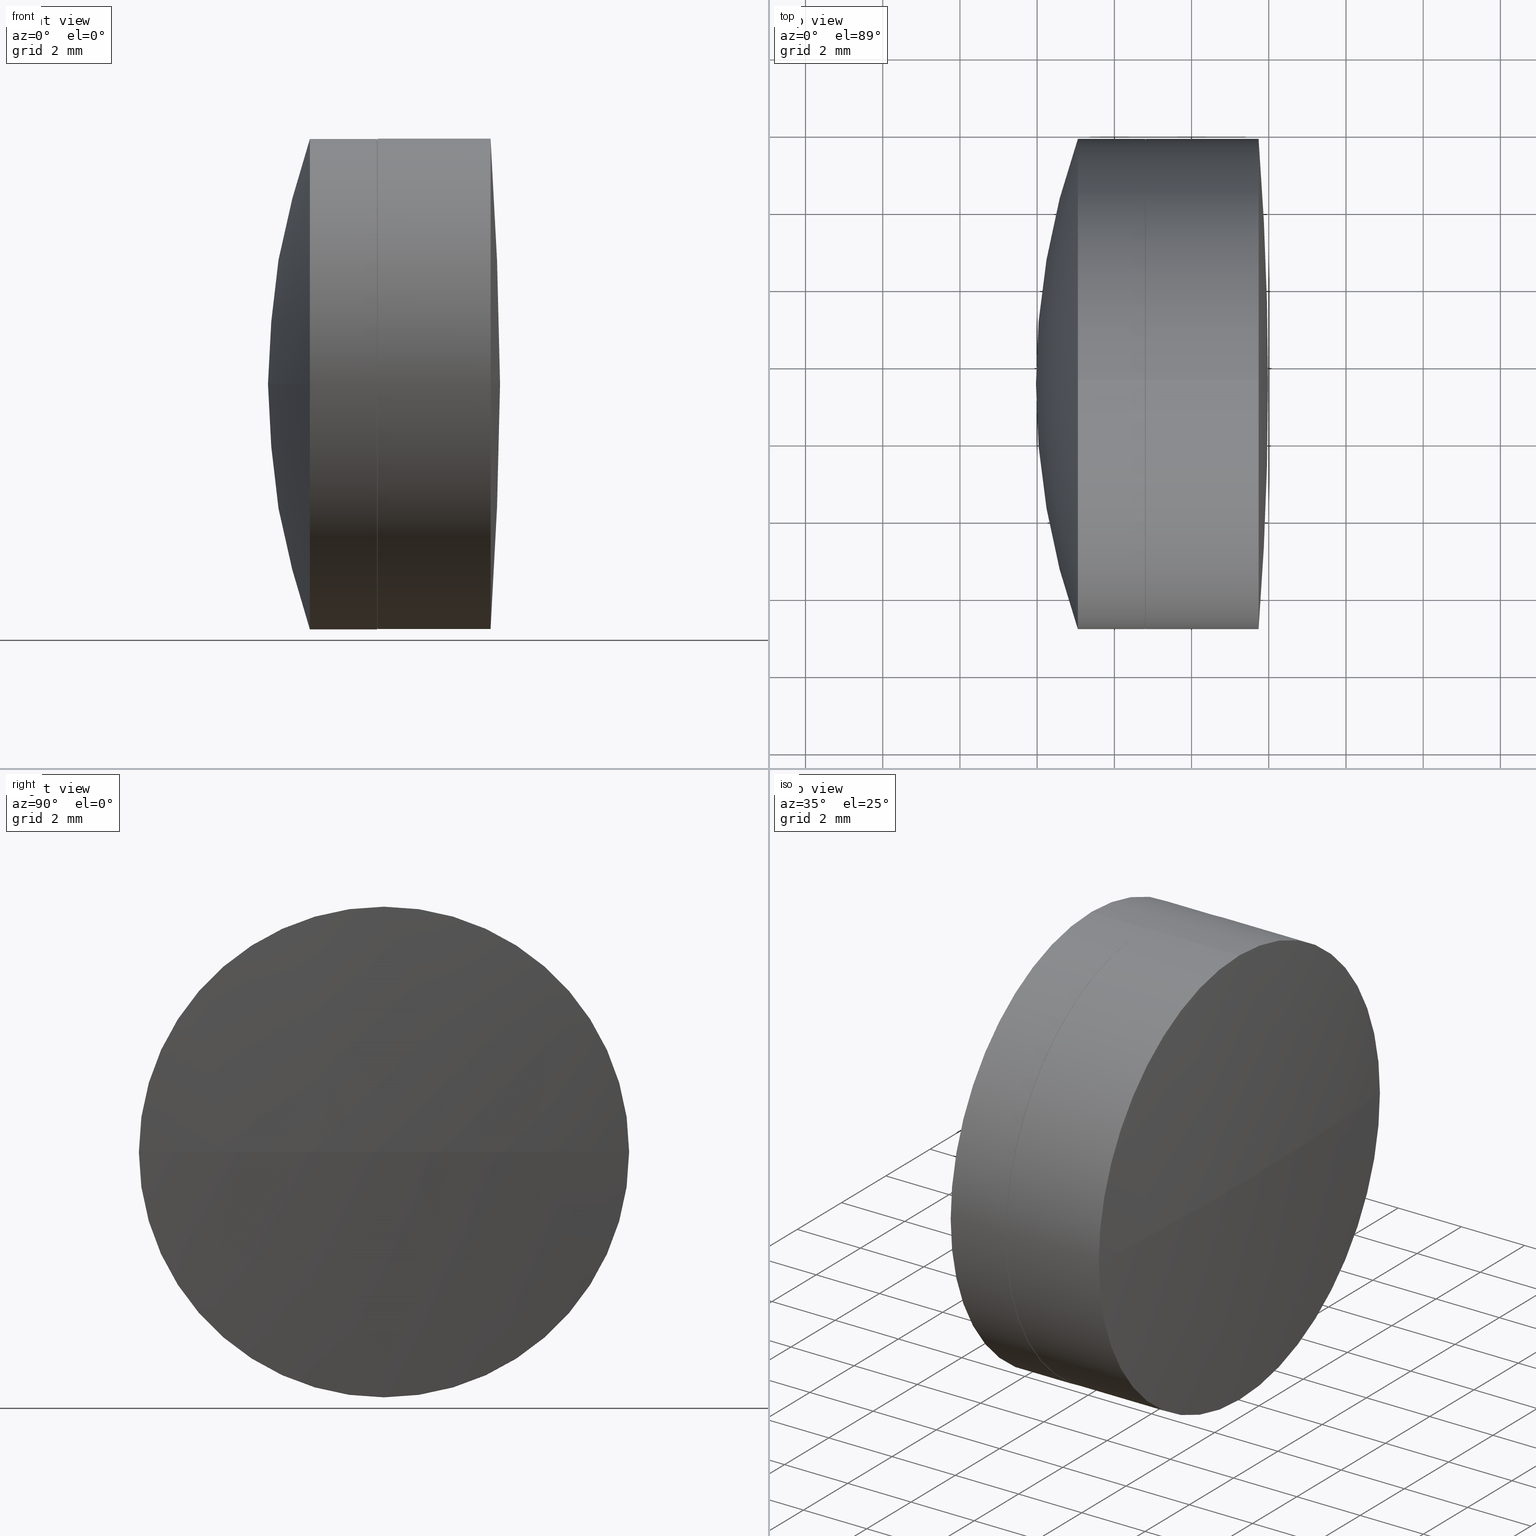
[diagram: canonical four-view strip — front | top / right | iso, engineering-drawing reading convention]
A machine part, canonical four-view strip (front | top / right | iso — engineering-drawing reading convention). The complete STEP part file that produces these views, byte-faithful:
ISO-10303-21;
HEADER;
FILE_DESCRIPTION (( 'STEP AP203' ),
    '1' );
FILE_NAME ('145271.STEP',
    '2024-05-11T01:56:44',
    ( '' ),
    ( '' ),
    'SwSTEP 2.0',
    'SolidWorks 2020',
    '' );
FILE_SCHEMA (( 'CONFIG_CONTROL_DESIGN' ));
ENDSEC;

DATA;
#1 = EDGE_CURVE ( 'NONE', #164, #22, #299, .T. ) ;
#2 = DATE_AND_TIME ( #41, #286 ) ;
#3 = DIRECTION ( 'NONE',  ( 0.000000000000000000, 0.000000000000000000, 1.000000000000000000 ) ) ;
#4 = AXIS2_PLACEMENT_3D ( 'NONE', #238, #42, #39 ) ;
#5 = VERTEX_POINT ( 'NONE', #177 ) ;
#6 = APPLICATION_PROTOCOL_DEFINITION ( 'international standard', 'config_control_design', 1994, #257 ) ;
#7 = CARTESIAN_POINT ( 'NONE',  ( -93.84096436547446274, 15.49148678616774788, -0.009771238364928054587 ) ) ;
#8 = CARTESIAN_POINT ( 'NONE',  ( -76.01897937436920927, 15.49225014134571232, 0.000000000000000000 ) ) ;
#9 = EDGE_LOOP ( 'NONE', ( #350, #143, #53, #262, #276, #243 ) ) ;
#10 = DIRECTION ( 'NONE',  ( 1.000000000000000000, 0.000000000000000000, 0.000000000000000000 ) ) ;
#11 = ADVANCED_FACE ( 'NONE', ( #215 ), #154, .F. ) ;
#12 = FACE_OUTER_BOUND ( 'NONE', #239, .T. ) ;
#13 = DESIGN_CONTEXT ( 'detailed design', #257, 'design' ) ;
#14 = AXIS2_PLACEMENT_3D ( 'NONE', #203, #113, #31 ) ;
#15 = CIRCLE ( 'NONE', #268, 6.349999999999999645 ) ;
#16 = DIRECTION ( 'NONE',  ( -1.000000000000000000, -0.000000000000000000, -0.000000000000000000 ) ) ;
#17 = APPROVAL ( #341, 'δָ��' ) ;
#18 = DIRECTION ( 'NONE',  ( 0.000000000000000000, 0.000000000000000000, 1.000000000000000000 ) ) ;
#19 = DIRECTION ( 'NONE',  ( 0.000000000000000000, 0.000000000000000000, 1.000000000000000000 ) ) ;
#20 = CARTESIAN_POINT ( 'NONE',  ( -80.03096436547446046, 15.49148678616774788, -0.009771238364928054587 ) ) ;
#21 = VECTOR ( 'NONE', #353, 1000.000000000000000 ) ;
#22 = VERTEX_POINT ( 'NONE', #218 ) ;
#23 = DIRECTION ( 'NONE',  ( 0.000000000000000000, 0.000000000000000000, 1.000000000000000000 ) ) ;
#24 = ADVANCED_FACE ( 'NONE', ( #112 ), #187, .T. ) ;
#25 = VECTOR ( 'NONE', #446, 1000.000000000000000 ) ;
#26 = ORIENTED_EDGE ( 'NONE', *, *, #232, .T. ) ;
#27 = COORDINATED_UNIVERSAL_TIME_OFFSET ( 8, 0, .AHEAD. ) ;
#28 = ORIENTED_EDGE ( 'NONE', *, *, #194, .F. ) ;
#29 = AXIS2_PLACEMENT_3D ( 'NONE', #225, #398, #291 ) ;
#30 = APPROVAL_ROLE ( '' ) ;
#31 = DIRECTION ( 'NONE',  ( 0.000000000000000000, 1.000000000000000000, 0.000000000000000000 ) ) ;
#32 = CIRCLE ( 'NONE', #51, 6.349999999999999645 ) ;
#33 = ORIENTED_EDGE ( 'NONE', *, *, #359, .F. ) ;
#34 = DATE_TIME_ROLE ( 'creation_date' ) ;
#35 = CARTESIAN_POINT ( 'NONE',  ( -74.26425793104048978, 9.142250141345662939, -7.776507174585752314E-16 ) ) ;
#36 = EDGE_CURVE ( 'NONE', #402, #164, #293, .T. ) ;
#37 = ORIENTED_EDGE ( 'NONE', *, *, #264, .T. ) ;
#38 = MECHANICAL_CONTEXT ( 'NONE', #231, 'mechanical' ) ;
#39 = DIRECTION ( 'NONE',  ( 0.000000000000000000, 1.000000000000000000, 0.000000000000000000 ) ) ;
#40 = VERTEX_POINT ( 'NONE', #46 ) ;
#41 = CALENDAR_DATE ( 2024, 11, 5 ) ;
#42 = DIRECTION ( 'NONE',  ( -0.000000000000000000, 0.000000000000000000, -1.000000000000000000 ) ) ;
#43 = CIRCLE ( 'NONE', #405, 6.349999999999999645 ) ;
#44 = CIRCLE ( 'NONE', #436, 82.31999999999999318 ) ;
#45 = AXIS2_PLACEMENT_3D ( 'NONE', #151, #84, #326 ) ;
#46 = CARTESIAN_POINT ( 'NONE',  ( -80.03096436547446046, 15.49148678616774966, -0.009771238364928054587 ) ) ;
#47 = DIRECTION ( 'NONE',  ( -0.000000000000000000, 0.000000000000000000, -1.000000000000000000 ) ) ;
#48 = CARTESIAN_POINT ( 'NONE',  ( -77.20144514165072280, 15.49148678616774788, -0.009771238364928054587 ) ) ;
#49 = SPHERICAL_SURFACE ( 'NONE', #396, 19.12000000000000455 ) ;
#50 = AXIS2_PLACEMENT_3D ( 'NONE', #8, #235, #91 ) ;
#51 = AXIS2_PLACEMENT_3D ( 'NONE', #328, #397, #18 ) ;
#52 = DIRECTION ( 'NONE',  ( -1.000000000000000000, -0.000000000000000000, -0.000000000000000000 ) ) ;
#53 = ORIENTED_EDGE ( 'NONE', *, *, #160, .F. ) ;
#54 = FACE_OUTER_BOUND ( 'NONE', #303, .T. ) ;
#55 = EDGE_LOOP ( 'NONE', ( #422, #327, #213, #99 ) ) ;
#56 = EDGE_LOOP ( 'NONE', ( #331, #172, #138, #126 ) ) ;
#57 = ADVANCED_BREP_SHAPE_REPRESENTATION ( '145271', ( #212, #365, #182 ), #431 ) ;
#58 = PRODUCT_DEFINITION_FORMATION_WITH_SPECIFIED_SOURCE ( '�κ�', '', #368, .NOT_KNOWN. ) ;
#59 = EDGE_CURVE ( 'NONE', #5, #263, #165, .T. ) ;
#60 = VERTEX_POINT ( 'NONE', #114 ) ;
#61 = CC_DESIGN_PERSON_AND_ORGANIZATION_ASSIGNMENT ( #412, #170, ( #58 ) ) ;
#62 = CARTESIAN_POINT ( 'NONE',  ( -74.26425793104048978, 21.84225014134576170, 0.000000000000000000 ) ) ;
#63 = AXIS2_PLACEMENT_3D ( 'NONE', #310, #241, #314 ) ;
#64 = CARTESIAN_POINT ( 'NONE',  ( -78.94570583853140988, 15.49148678616774788, -0.009771238364928054587 ) ) ;
#65 = COORDINATED_UNIVERSAL_TIME_OFFSET ( 8, 0, .AHEAD. ) ;
#66 = FACE_OUTER_BOUND ( 'NONE', #184, .T. ) ;
#67 = VERTEX_POINT ( 'NONE', #152 ) ;
#68 = CLOSED_SHELL ( 'NONE', ( #306, #391, #153, #424, #230, #24 ) ) ;
#69 = EDGE_CURVE ( 'NONE', #380, #439, #89, .T. ) ;
#70 = CARTESIAN_POINT ( 'NONE',  ( 0.000000000000000000, 0.000000000000000000, 0.000000000000000000 ) ) ;
#71 = DIRECTION ( 'NONE',  ( -1.000000000000000000, -0.000000000000000000, -0.000000000000000000 ) ) ;
#72 = CIRCLE ( 'NONE', #191, 6.349999999999999645 ) ;
#73 = VERTEX_POINT ( 'NONE', #192 ) ;
#74 = APPROVAL_STATUS ( 'not_yet_approved' ) ;
#75 = CYLINDRICAL_SURFACE ( 'NONE', #336, 6.349999999999999645 ) ;
#76 = VERTEX_POINT ( 'NONE', #333 ) ;
#77 = DIRECTION ( 'NONE',  ( -0.000000000000000000, 0.000000000000000000, 1.000000000000000000 ) ) ;
#78 = DIRECTION ( 'NONE',  ( -1.000000000000000000, -0.000000000000000000, -0.000000000000000000 ) ) ;
#79 = EDGE_CURVE ( 'NONE', #193, #124, #360, .T. ) ;
#80 = CARTESIAN_POINT ( 'NONE',  ( -77.18875715362992196, 21.84225014134572262, 0.000000000000000000 ) ) ;
#81 = CC_DESIGN_APPROVAL ( #399, ( #217 ) ) ;
#82 = DIRECTION ( 'NONE',  ( 0.000000000000000000, 1.000000000000000000, 0.000000000000000000 ) ) ;
#83 = DIRECTION ( 'NONE',  ( -0.000000000000000000, 0.000000000000000000, 1.000000000000000000 ) ) ;
#84 = DIRECTION ( 'NONE',  ( -0.000000000000000000, 0.000000000000000000, -1.000000000000000000 ) ) ;
#85 = DIRECTION ( 'NONE',  ( 0.000000000000000000, 0.000000000000000000, 1.000000000000000000 ) ) ;
#86 = EDGE_CURVE ( 'NONE', #246, #380, #43, .T. ) ;
#87 = AXIS2_PLACEMENT_3D ( 'NONE', #369, #229, #23 ) ;
#88 = CARTESIAN_POINT ( 'NONE',  ( -77.20144514165072280, 15.49148678616774788, 6.340228761635072097 ) ) ;
#89 = LINE ( 'NONE', #251, #343 ) ;
#90 = CARTESIAN_POINT ( 'NONE',  ( -78.94570583853140988, 15.49148678616774788, 6.340228761635072097 ) ) ;
#91 = DIRECTION ( 'NONE',  ( 0.000000000000000000, 0.000000000000000000, 1.000000000000000000 ) ) ;
#92 = ORIENTED_EDGE ( 'NONE', *, *, #179, .F. ) ;
#93 = CIRCLE ( 'NONE', #285, 6.349999999999999645 ) ;
#94 = PRODUCT_DEFINITION ( 'δ֪', '', #58, #13 ) ;
#95 = VERTEX_POINT ( 'NONE', #434 ) ;
#96 = LOCAL_TIME ( 9, 56, 44.00000000000000000, #200 ) ;
#97 = DIRECTION ( 'NONE',  ( 0.000000000000000000, 0.000000000000000000, 1.000000000000000000 ) ) ;
#98 = APPROVAL_DATE_TIME ( #167, #17 ) ;
#99 = ORIENTED_EDGE ( 'NONE', *, *, #359, .T. ) ;
#100 = DIRECTION ( 'NONE',  ( 0.000000000000000000, 1.000000000000000000, 1.224646799147352961E-16 ) ) ;
#101 = SECURITY_CLASSIFICATION_LEVEL ( 'unclassified' ) ;
#102 = EDGE_CURVE ( 'NONE', #5, #60, #266, .T. ) ;
#103 = CARTESIAN_POINT ( 'NONE',  ( -74.26425793104050399, 15.49225014134571232, 0.000000000000000000 ) ) ;
#104 = ORIENTED_EDGE ( 'NONE', *, *, #179, .T. ) ;
#105 =( NAMED_UNIT ( * ) PLANE_ANGLE_UNIT ( ) SI_UNIT ( $, .RADIAN. ) );
#106 = CARTESIAN_POINT ( 'NONE',  ( -80.03096436547446046, 15.49148678616774788, -0.009771238364928054587 ) ) ;
#107 = AXIS2_PLACEMENT_3D ( 'NONE', #150, #221, #358 ) ;
#108 = ORIENTED_EDGE ( 'NONE', *, *, #407, .F. ) ;
#109 = PERSON_AND_ORGANIZATION_ROLE ( 'creator' ) ;
#110 = CARTESIAN_POINT ( 'NONE',  ( -77.18875715362992196, 15.49225014134571232, 0.000000000000000000 ) ) ;
#111 = EDGE_CURVE ( 'NONE', #76, #439, #323, .T. ) ;
#112 = FACE_OUTER_BOUND ( 'NONE', #345, .T. ) ;
#113 = DIRECTION ( 'NONE',  ( 0.000000000000000000, 0.000000000000000000, -1.000000000000000000 ) ) ;
#114 = CARTESIAN_POINT ( 'NONE',  ( -77.18875715362992196, 9.142250141345700243, -7.776507174585707940E-16 ) ) ;
#115 = DIRECTION ( 'NONE',  ( 0.000000000000000000, 0.000000000000000000, 1.000000000000000000 ) ) ;
#116 = LOCAL_TIME ( 9, 56, 44.00000000000000000, #65 ) ;
#117 = CARTESIAN_POINT ( 'NONE',  ( -76.01897937436920927, 15.49225014134571232, 0.000000000000000000 ) ) ;
#118 = FACE_OUTER_BOUND ( 'NONE', #384, .T. ) ;
#119 = EDGE_CURVE ( 'NONE', #169, #289, #379, .T. ) ;
#120 = DIRECTION ( 'NONE',  ( 0.000000000000000000, 0.000000000000000000, 1.000000000000000000 ) ) ;
#121 = DIRECTION ( 'NONE',  ( -1.000000000000000000, -0.000000000000000000, -0.000000000000000000 ) ) ;
#122 = ORIENTED_EDGE ( 'NONE', *, *, #1, .F. ) ;
#123 = CIRCLE ( 'NONE', #134, 19.12000000000000455 ) ;
#124 = VERTEX_POINT ( 'NONE', #62 ) ;
#125 = EDGE_CURVE ( 'NONE', #380, #402, #195, .T. ) ;
#126 = ORIENTED_EDGE ( 'NONE', *, *, #232, .F. ) ;
#127 = DIRECTION ( 'NONE',  ( 0.000000000000000000, 0.000000000000000000, 1.000000000000000000 ) ) ;
#128 = AXIS2_PLACEMENT_3D ( 'NONE', #103, #71, #176 ) ;
#129 = ORGANIZATION ( 'δָ��', 'δָ��', '' ) ;
#130 = DIRECTION ( 'NONE',  ( 0.000000000000000000, 1.000000000000000000, 1.224646799147353207E-16 ) ) ;
#131 = ORIENTED_EDGE ( 'NONE', *, *, #435, .T. ) ;
#132 = DIRECTION ( 'NONE',  ( -1.000000000000000000, -0.000000000000000000, -0.000000000000000000 ) ) ;
#133 = ORIENTED_EDGE ( 'NONE', *, *, #79, .F. ) ;
#134 = AXIS2_PLACEMENT_3D ( 'NONE', #316, #378, #171 ) ;
#135 = AXIS2_PLACEMENT_3D ( 'NONE', #253, #83, #390 ) ;
#136 = PERSON_AND_ORGANIZATION_ROLE ( 'design_owner' ) ;
#137 = ADVANCED_FACE ( 'NONE', ( #118 ), #344, .T. ) ;
#138 = ORIENTED_EDGE ( 'NONE', *, *, #297, .T. ) ;
#139 = APPROVAL_ROLE ( '' ) ;
#140 = CARTESIAN_POINT ( 'NONE',  ( -78.94570583853140988, 15.49148678616774788, -0.009771238364928054587 ) ) ;
#141 = PERSON_AND_ORGANIZATION ( #339, #129 ) ;
#142 = CARTESIAN_POINT ( 'NONE',  ( -76.01897937436920927, 15.49225014134571232, -6.349999999999999645 ) ) ;
#143 = ORIENTED_EDGE ( 'NONE', *, *, #149, .T. ) ;
#144 = EDGE_CURVE ( 'NONE', #22, #76, #242, .T. ) ;
#145 = SPHERICAL_SURFACE ( 'NONE', #4, 82.31999999999999318 ) ;
#146 = ORIENTED_EDGE ( 'NONE', *, *, #1, .T. ) ;
#147 = FACE_OUTER_BOUND ( 'NONE', #56, .T. ) ;
#148 = AXIS2_PLACEMENT_3D ( 'NONE', #183, #121, #115 ) ;
#149 = EDGE_CURVE ( 'NONE', #209, #73, #250, .T. ) ;
#150 = CARTESIAN_POINT ( 'NONE',  ( -93.84096436547446274, 15.49148678616774788, -0.009771238364928054587 ) ) ;
#151 = CARTESIAN_POINT ( 'NONE',  ( -156.3389793743691882, 15.49225014134571232, 0.000000000000000000 ) ) ;
#152 = CARTESIAN_POINT ( 'NONE',  ( -78.94570583853140988, 21.84148678616774575, -0.009771238364928054587 ) ) ;
#153 = ADVANCED_FACE ( 'NONE', ( #147 ), #347, .T. ) ;
#154 = SPHERICAL_SURFACE ( 'NONE', #189, 17.82000000000000028 ) ;
#155 = AXIS2_PLACEMENT_3D ( 'NONE', #7, #288, #248 ) ;
#156 = LOCAL_TIME ( 9, 56, 44.00000000000000000, #385 ) ;
#157 = ORIENTED_EDGE ( 'NONE', *, *, #144, .F. ) ;
#158 = CARTESIAN_POINT ( 'NONE',  ( -77.20144514165072280, 15.49148678616774788, -0.009771238364928054587 ) ) ;
#159 = AXIS2_PLACEMENT_3D ( 'NONE', #227, #403, #211 ) ;
#160 = EDGE_CURVE ( 'NONE', #263, #73, #258, .T. ) ;
#161 = EDGE_LOOP ( 'NONE', ( #329, #104, #133, #367 ) ) ;
#162 = CC_DESIGN_DATE_AND_TIME_ASSIGNMENT ( #445, #202, ( #217 ) ) ;
#163 = PERSON_AND_ORGANIZATION_ROLE ( 'design_supplier' ) ;
#164 = VERTEX_POINT ( 'NONE', #292 ) ;
#165 = CIRCLE ( 'NONE', #29, 17.82000000000000384 ) ;
#166 = AXIS2_PLACEMENT_3D ( 'NONE', #216, #355, #168 ) ;
#167 = DATE_AND_TIME ( #409, #156 ) ;
#168 = DIRECTION ( 'NONE',  ( 0.000000000000000000, 1.000000000000000000, 1.224179004060959638E-16 ) ) ;
#169 = VERTEX_POINT ( 'NONE', #342 ) ;
#170 = PERSON_AND_ORGANIZATION_ROLE ( 'creator' ) ;
#171 = DIRECTION ( 'NONE',  ( 0.000000000000000000, 1.000000000000000000, 1.224476499064270716E-16 ) ) ;
#172 = ORIENTED_EDGE ( 'NONE', *, *, #144, .T. ) ;
#173 = CC_DESIGN_DATE_AND_TIME_ASSIGNMENT ( #271, #34, ( #94 ) ) ;
#174 = CARTESIAN_POINT ( 'NONE',  ( -77.18875715362992196, 15.49225014134571232, 6.349999999999999645 ) ) ;
#175 = EDGE_LOOP ( 'NONE', ( #317, #146, #371, #28, #320, #401 ) ) ;
#176 = DIRECTION ( 'NONE',  ( 0.000000000000000000, 0.000000000000000000, 1.000000000000000000 ) ) ;
#177 = CARTESIAN_POINT ( 'NONE',  ( -76.01897937436919506, 15.49225014134571410, 0.000000000000000000 ) ) ;
#178 = DIRECTION ( 'NONE',  ( -1.000000000000000000, -0.000000000000000000, -0.000000000000000000 ) ) ;
#179 = EDGE_CURVE ( 'NONE', #169, #124, #44, .T. ) ;
#180 = LINE ( 'NONE', #324, #302 ) ;
#181 = AXIS2_PLACEMENT_3D ( 'NONE', #265, #404, #100 ) ;
#182 = AXIS2_PLACEMENT_3D ( 'NONE', #70, #313, #207 ) ;
#183 = CARTESIAN_POINT ( 'NONE',  ( -78.94570583853140988, 15.49148678616774788, -0.009771238364928054587 ) ) ;
#184 = EDGE_LOOP ( 'NONE', ( #315, #284, #131, #236 ) ) ;
#185 = CC_DESIGN_PERSON_AND_ORGANIZATION_ASSIGNMENT ( #307, #374, ( #217 ) ) ;
#186 = APPROVAL_DATE_TIME ( #294, #399 ) ;
#187 = CYLINDRICAL_SURFACE ( 'NONE', #370, 6.349999999999999645 ) ;
#188 = DIRECTION ( 'NONE',  ( -1.000000000000000000, -0.000000000000000000, -0.000000000000000000 ) ) ;
#189 = AXIS2_PLACEMENT_3D ( 'NONE', #421, #226, #82 ) ;
#190 = CIRCLE ( 'NONE', #128, 6.349999999999999645 ) ;
#191 = AXIS2_PLACEMENT_3D ( 'NONE', #222, #429, #298 ) ;
#192 = CARTESIAN_POINT ( 'NONE',  ( -77.18875715362992196, 15.49225014134571232, -6.349999999999999645 ) ) ;
#193 = VERTEX_POINT ( 'NONE', #382 ) ;
#194 = EDGE_CURVE ( 'NONE', #439, #67, #93, .T. ) ;
#195 = CIRCLE ( 'NONE', #205, 6.349999999999999645 ) ;
#196 = CARTESIAN_POINT ( 'NONE',  ( -77.20144514165072280, 15.49148678616774788, -0.009771238364928054587 ) ) ;
#197 = AXIS2_PLACEMENT_3D ( 'NONE', #319, #77, #10 ) ;
#198 = AXIS2_PLACEMENT_3D ( 'NONE', #117, #357, #120 ) ;
#199 = ORIENTED_EDGE ( 'NONE', *, *, #428, .T. ) ;
#200 = COORDINATED_UNIVERSAL_TIME_OFFSET ( 8, 0, .AHEAD. ) ;
#201 = ORIENTED_EDGE ( 'NONE', *, *, #297, .F. ) ;
#202 = DATE_TIME_ROLE ( 'classification_date' ) ;
#203 = CARTESIAN_POINT ( 'NONE',  ( -93.83897937436918824, 15.49225014134571232, 0.000000000000000000 ) ) ;
#204 = ORIENTED_EDGE ( 'NONE', *, *, #36, .F. ) ;
#205 = AXIS2_PLACEMENT_3D ( 'NONE', #196, #426, #219 ) ;
#206 = AXIS2_PLACEMENT_3D ( 'NONE', #48, #427, #322 ) ;
#207 = DIRECTION ( 'NONE',  ( 1.000000000000000000, 0.000000000000000000, 0.000000000000000000 ) ) ;
#208 = SPHERICAL_SURFACE ( 'NONE', #14, 17.82000000000000028 ) ;
#209 = VERTEX_POINT ( 'NONE', #414 ) ;
#210 = APPROVAL_DATE_TIME ( #2, #223 ) ;
#211 = DIRECTION ( 'NONE',  ( 0.000000000000000000, 0.000000000000000000, 1.000000000000000000 ) ) ;
#212 = MANIFOLD_SOLID_BREP ( '145271b-1-solid1', #283 ) ;
#213 = ORIENTED_EDGE ( 'NONE', *, *, #160, .T. ) ;
#214 = CARTESIAN_POINT ( 'NONE',  ( -60.91096436547447013, 15.49148678616774788, -0.009771238364928054587 ) ) ;
#215 = FACE_OUTER_BOUND ( 'NONE', #55, .T. ) ;
#216 = CARTESIAN_POINT ( 'NONE',  ( -93.84096436547446274, 15.49148678616774788, -0.009771238364928054587 ) ) ;
#217 = SECURITY_CLASSIFICATION ( '', '', #101 ) ;
#218 = CARTESIAN_POINT ( 'NONE',  ( -78.94570583853140988, 15.49148678616774788, -6.359771238364928081 ) ) ;
#219 = DIRECTION ( 'NONE',  ( 0.000000000000000000, 0.000000000000000000, 1.000000000000000000 ) ) ;
#220 = FACE_OUTER_BOUND ( 'NONE', #161, .T. ) ;
#221 = DIRECTION ( 'NONE',  ( -0.000000000000000000, 0.000000000000000000, -1.000000000000000000 ) ) ;
#222 = CARTESIAN_POINT ( 'NONE',  ( -74.26425793104050399, 15.49225014134571232, 0.000000000000000000 ) ) ;
#223 = APPROVAL ( #74, 'δָ��' ) ;
#224 = DIRECTION ( 'NONE',  ( 0.000000000000000000, 0.000000000000000000, 1.000000000000000000 ) ) ;
#225 = CARTESIAN_POINT ( 'NONE',  ( -93.83897937436918824, 15.49225014134571232, 0.000000000000000000 ) ) ;
#226 = DIRECTION ( 'NONE',  ( 0.000000000000000000, 0.000000000000000000, -1.000000000000000000 ) ) ;
#227 = CARTESIAN_POINT ( 'NONE',  ( -78.94570583853140988, 15.49148678616774788, -0.009771238364928054587 ) ) ;
#228 = ORIENTED_EDGE ( 'NONE', *, *, #264, .F. ) ;
#229 = DIRECTION ( 'NONE',  ( -1.000000000000000000, -0.000000000000000000, -0.000000000000000000 ) ) ;
#230 = ADVANCED_FACE ( 'NONE', ( #290 ), #282, .T. ) ;
#231 = APPLICATION_CONTEXT ( 'configuration controlled 3d designs of mechanical parts and assemblies' ) ;
#232 = EDGE_CURVE ( 'NONE', #67, #40, #395, .T. ) ;
#233 = APPROVAL_PERSON_ORGANIZATION ( #275, #223, #240 ) ;
#234 = CARTESIAN_POINT ( 'NONE',  ( -156.3389793743691882, 15.49225014134571232, 0.000000000000000000 ) ) ;
#235 = DIRECTION ( 'NONE',  ( -1.000000000000000000, -0.000000000000000000, -0.000000000000000000 ) ) ;
#236 = ORIENTED_EDGE ( 'NONE', *, *, #280, .T. ) ;
#237 =( NAMED_UNIT ( * ) SI_UNIT ( $, .STERADIAN. ) SOLID_ANGLE_UNIT ( ) );
#238 = CARTESIAN_POINT ( 'NONE',  ( -156.3389793743691882, 15.49225014134571232, 0.000000000000000000 ) ) ;
#239 = EDGE_LOOP ( 'NONE', ( #201, #432, #309, #26 ) ) ;
#240 = APPROVAL_ROLE ( '' ) ;
#241 = DIRECTION ( 'NONE',  ( -1.000000000000000000, -0.000000000000000000, -0.000000000000000000 ) ) ;
#242 = CIRCLE ( 'NONE', #159, 6.349999999999999645 ) ;
#243 = ORIENTED_EDGE ( 'NONE', *, *, #79, .T. ) ;
#244 = ADVANCED_FACE ( 'NONE', ( #352 ), #145, .T. ) ;
#245 = DIRECTION ( 'NONE',  ( -1.000000000000000000, -0.000000000000000000, -0.000000000000000000 ) ) ;
#246 = VERTEX_POINT ( 'NONE', #388 ) ;
#247 = PERSON_AND_ORGANIZATION ( #339, #129 ) ;
#248 = DIRECTION ( 'NONE',  ( 0.000000000000000000, 1.000000000000000000, 0.000000000000000000 ) ) ;
#249 = DIRECTION ( 'NONE',  ( 0.000000000000000000, 0.000000000000000000, 1.000000000000000000 ) ) ;
#250 = LINE ( 'NONE', #142, #25 ) ;
#251 = CARTESIAN_POINT ( 'NONE',  ( -80.03096436547446046, 15.49148678616774788, 6.340228761635072097 ) ) ;
#252 = EDGE_CURVE ( 'NONE', #209, #289, #190, .T. ) ;
#253 = CARTESIAN_POINT ( 'NONE',  ( -93.84096436547446274, 15.49148678616774788, -0.009771238364928054587 ) ) ;
#254 = DIRECTION ( 'NONE',  ( -0.000000000000000000, 0.000000000000000000, -1.000000000000000000 ) ) ;
#255 = ADVANCED_FACE ( 'NONE', ( #66 ), #208, .F. ) ;
#256 = CARTESIAN_POINT ( 'NONE',  ( -60.91096436547447013, 15.49148678616774788, -0.009771238364928054587 ) ) ;
#257 = APPLICATION_CONTEXT ( 'configuration controlled 3d designs of mechanical parts and assemblies' ) ;
#258 = CIRCLE ( 'NONE', #330, 6.349999999999999645 ) ;
#259 = SPHERICAL_SURFACE ( 'NONE', #45, 82.31999999999999318 ) ;
#260 = CIRCLE ( 'NONE', #63, 6.349999999999999645 ) ;
#261 = ORIENTED_EDGE ( 'NONE', *, *, #252, .T. ) ;
#262 = ORIENTED_EDGE ( 'NONE', *, *, #280, .F. ) ;
#263 = VERTEX_POINT ( 'NONE', #80 ) ;
#264 = EDGE_CURVE ( 'NONE', #95, #246, #272, .T. ) ;
#265 = CARTESIAN_POINT ( 'NONE',  ( -93.83897937436918824, 15.49225014134571232, 0.000000000000000000 ) ) ;
#266 = CIRCLE ( 'NONE', #181, 17.82000000000000384 ) ;
#267 = CIRCLE ( 'NONE', #148, 6.349999999999999645 ) ;
#268 = AXIS2_PLACEMENT_3D ( 'NONE', #425, #52, #224 ) ;
#269 = CC_DESIGN_PERSON_AND_ORGANIZATION_ASSIGNMENT ( #287, #109, ( #94 ) ) ;
#270 = ORIENTED_EDGE ( 'NONE', *, *, #252, .F. ) ;
#271 = DATE_AND_TIME ( #373, #96 ) ;
#272 = CIRCLE ( 'NONE', #166, 17.80999999999999872 ) ;
#273 = ORIENTED_EDGE ( 'NONE', *, *, #149, .F. ) ;
#274 = LOCAL_TIME ( 9, 56, 44.00000000000000000, #277 ) ;
#275 = PERSON_AND_ORGANIZATION ( #339, #129 ) ;
#276 = ORIENTED_EDGE ( 'NONE', *, *, #428, .F. ) ;
#277 = COORDINATED_UNIVERSAL_TIME_OFFSET ( 8, 0, .AHEAD. ) ;
#278 = DIRECTION ( 'NONE',  ( -1.000000000000000000, -0.000000000000000000, -0.000000000000000000 ) ) ;
#279 = ORIENTED_EDGE ( 'NONE', *, *, #372, .F. ) ;
#280 = EDGE_CURVE ( 'NONE', #442, #263, #260, .T. ) ;
#281 = CALENDAR_DATE ( 2024, 11, 5 ) ;
#282 = SPHERICAL_SURFACE ( 'NONE', #155, 17.80999999999999872 ) ;
#283 = CLOSED_SHELL ( 'NONE', ( #383, #244, #255, #11, #325, #137 ) ) ;
#284 = ORIENTED_EDGE ( 'NONE', *, *, #102, .T. ) ;
#285 = AXIS2_PLACEMENT_3D ( 'NONE', #140, #278, #375 ) ;
#286 = LOCAL_TIME ( 9, 56, 44.00000000000000000, #27 ) ;
#287 = PERSON_AND_ORGANIZATION ( #339, #129 ) ;
#288 = DIRECTION ( 'NONE',  ( -0.000000000000000000, 0.000000000000000000, -1.000000000000000000 ) ) ;
#289 = VERTEX_POINT ( 'NONE', #35 ) ;
#290 = FACE_OUTER_BOUND ( 'NONE', #411, .T. ) ;
#291 = DIRECTION ( 'NONE',  ( 1.000000000000000000, 0.000000000000000000, 0.000000000000000000 ) ) ;
#292 = CARTESIAN_POINT ( 'NONE',  ( -77.20144514165072280, 15.49148678616774788, -6.359771238364928081 ) ) ;
#293 = CIRCLE ( 'NONE', #308, 6.349999999999999645 ) ;
#294 = DATE_AND_TIME ( #281, #274 ) ;
#295 = FACE_OUTER_BOUND ( 'NONE', #9, .T. ) ;
#296 = CARTESIAN_POINT ( 'NONE',  ( -77.18875715362992196, 15.49225014134571232, 0.000000000000000000 ) ) ;
#297 = EDGE_CURVE ( 'NONE', #76, #40, #123, .T. ) ;
#298 = DIRECTION ( 'NONE',  ( 0.000000000000000000, 0.000000000000000000, 1.000000000000000000 ) ) ;
#299 = LINE ( 'NONE', #433, #21 ) ;
#300 = AXIS2_PLACEMENT_3D ( 'NONE', #64, #132, #97 ) ;
#301 = ORIENTED_EDGE ( 'NONE', *, *, #415, .T. ) ;
#302 = VECTOR ( 'NONE', #16, 1000.000000000000000 ) ;
#303 = EDGE_LOOP ( 'NONE', ( #108, #37, #413, #204 ) ) ;
#304 = DIRECTION ( 'NONE',  ( -1.000000000000000000, -0.000000000000000000, -0.000000000000000000 ) ) ;
#305 = DIRECTION ( 'NONE',  ( 0.000000000000000000, 1.224646799147353207E-16, -1.000000000000000000 ) ) ;
#306 = ADVANCED_FACE ( 'NONE', ( #416 ), #75, .T. ) ;
#307 = PERSON_AND_ORGANIZATION ( #339, #129 ) ;
#308 = AXIS2_PLACEMENT_3D ( 'NONE', #387, #78, #19 ) ;
#309 = ORIENTED_EDGE ( 'NONE', *, *, #194, .T. ) ;
#310 = CARTESIAN_POINT ( 'NONE',  ( -77.18875715362992196, 15.49225014134571232, 0.000000000000000000 ) ) ;
#311 = EDGE_CURVE ( 'NONE', #67, #22, #267, .T. ) ;
#312 = ORIENTED_EDGE ( 'NONE', *, *, #435, .F. ) ;
#313 = DIRECTION ( 'NONE',  ( 0.000000000000000000, 0.000000000000000000, 1.000000000000000000 ) ) ;
#314 = DIRECTION ( 'NONE',  ( 0.000000000000000000, 0.000000000000000000, 1.000000000000000000 ) ) ;
#315 = ORIENTED_EDGE ( 'NONE', *, *, #59, .F. ) ;
#316 = CARTESIAN_POINT ( 'NONE',  ( -60.91096436547447013, 15.49148678616774788, -0.009771238364928054587 ) ) ;
#317 = ORIENTED_EDGE ( 'NONE', *, *, #36, .T. ) ;
#318 = PRODUCT_RELATED_PRODUCT_CATEGORY ( 'detail', '', ( #368 ) ) ;
#319 = CARTESIAN_POINT ( 'NONE',  ( -60.91096436547447013, 15.49148678616774788, -0.009771238364928054587 ) ) ;
#320 = ORIENTED_EDGE ( 'NONE', *, *, #69, .F. ) ;
#321 = DIRECTION ( 'NONE',  ( 1.000000000000000000, 0.000000000000000000, 0.000000000000000000 ) ) ;
#322 = DIRECTION ( 'NONE',  ( 0.000000000000000000, 0.000000000000000000, 1.000000000000000000 ) ) ;
#323 = CIRCLE ( 'NONE', #300, 6.349999999999999645 ) ;
#324 = CARTESIAN_POINT ( 'NONE',  ( -76.01897937436920927, 15.49225014134571232, 6.349999999999999645 ) ) ;
#325 = ADVANCED_FACE ( 'NONE', ( #220 ), #259, .T. ) ;
#326 = DIRECTION ( 'NONE',  ( 0.000000000000000000, 1.000000000000000000, 0.000000000000000000 ) ) ;
#327 = ORIENTED_EDGE ( 'NONE', *, *, #59, .T. ) ;
#328 = CARTESIAN_POINT ( 'NONE',  ( -74.26425793104050399, 15.49225014134571232, 0.000000000000000000 ) ) ;
#329 = ORIENTED_EDGE ( 'NONE', *, *, #119, .F. ) ;
#330 = AXIS2_PLACEMENT_3D ( 'NONE', #110, #178, #386 ) ;
#331 = ORIENTED_EDGE ( 'NONE', *, *, #311, .T. ) ;
#332 = CC_DESIGN_SECURITY_CLASSIFICATION ( #217, ( #58 ) ) ;
#333 = CARTESIAN_POINT ( 'NONE',  ( -78.94570583853140988, 9.141486786167750012, -0.009771238364928831743 ) ) ;
#334 = CC_DESIGN_PERSON_AND_ORGANIZATION_ASSIGNMENT ( #338, #136, ( #368 ) ) ;
#335 = AXIS2_PLACEMENT_3D ( 'NONE', #214, #47, #349 ) ;
#336 = AXIS2_PLACEMENT_3D ( 'NONE', #106, #245, #3 ) ;
#337 = ORIENTED_EDGE ( 'NONE', *, *, #438, .T. ) ;
#338 = PERSON_AND_ORGANIZATION ( #339, #129 ) ;
#339 = PERSON ( 'δָ��', 'δָ��', 'δָ��', ('δָ��'), ('δָ��'), ('δָ��') ) ;
#340 = ORIENTED_EDGE ( 'NONE', *, *, #86, .F. ) ;
#341 = APPROVAL_STATUS ( 'not_yet_approved' ) ;
#342 = CARTESIAN_POINT ( 'NONE',  ( -74.01897937436919506, 15.49225014134571765, 0.000000000000000000 ) ) ;
#343 = VECTOR ( 'NONE', #366, 1000.000000000000000 ) ;
#344 = CYLINDRICAL_SURFACE ( 'NONE', #50, 6.349999999999999645 ) ;
#345 = EDGE_LOOP ( 'NONE', ( #122, #301, #430, #447, #376, #157 ) ) ;
#346 = CALENDAR_DATE ( 2024, 11, 5 ) ;
#347 = SPHERICAL_SURFACE ( 'NONE', #335, 19.12000000000000455 ) ;
#348 =( LENGTH_UNIT ( ) NAMED_UNIT ( * ) SI_UNIT ( .MILLI., .METRE. ) );
#349 = DIRECTION ( 'NONE',  ( 0.000000000000000000, 1.000000000000000000, 0.000000000000000000 ) ) ;
#350 = ORIENTED_EDGE ( 'NONE', *, *, #372, .T. ) ;
#351 = CC_DESIGN_PERSON_AND_ORGANIZATION_ASSIGNMENT ( #377, #163, ( #58 ) ) ;
#352 = FACE_OUTER_BOUND ( 'NONE', #389, .T. ) ;
#353 = DIRECTION ( 'NONE',  ( -1.000000000000000000, -0.000000000000000000, -0.000000000000000000 ) ) ;
#354 = APPROVAL_PERSON_ORGANIZATION ( #247, #17, #30 ) ;
#355 = DIRECTION ( 'NONE',  ( 0.000000000000000000, 1.224646799147353207E-16, -1.000000000000000000 ) ) ;
#356 = SHAPE_DEFINITION_REPRESENTATION ( #400, #57 ) ;
#357 = DIRECTION ( 'NONE',  ( -1.000000000000000000, -0.000000000000000000, -0.000000000000000000 ) ) ;
#358 = DIRECTION ( 'NONE',  ( 0.000000000000000000, 1.000000000000000000, 0.000000000000000000 ) ) ;
#359 = EDGE_CURVE ( 'NONE', #73, #60, #15, .T. ) ;
#360 = CIRCLE ( 'NONE', #87, 6.349999999999999645 ) ;
#361 = CIRCLE ( 'NONE', #206, 6.349999999999999645 ) ;
#362 = CARTESIAN_POINT ( 'NONE',  ( -77.20144514165072280, 21.84148678616775285, -0.009771238364928054587 ) ) ;
#363 = ORIENTED_EDGE ( 'NONE', *, *, #119, .T. ) ;
#364 = CYLINDRICAL_SURFACE ( 'NONE', #198, 6.349999999999999645 ) ;
#365 = MANIFOLD_SOLID_BREP ( '145271a-1-solid1', #68 ) ;
#366 = DIRECTION ( 'NONE',  ( -1.000000000000000000, -0.000000000000000000, -0.000000000000000000 ) ) ;
#367 = ORIENTED_EDGE ( 'NONE', *, *, #438, .F. ) ;
#368 = PRODUCT ( '145271', '145271', '', ( #38 ) ) ;
#369 = CARTESIAN_POINT ( 'NONE',  ( -74.26425793104050399, 15.49225014134571232, 0.000000000000000000 ) ) ;
#370 = AXIS2_PLACEMENT_3D ( 'NONE', #20, #188, #249 ) ;
#371 = ORIENTED_EDGE ( 'NONE', *, *, #311, .F. ) ;
#372 = EDGE_CURVE ( 'NONE', #124, #209, #32, .T. ) ;
#373 = CALENDAR_DATE ( 2024, 11, 5 ) ;
#374 = PERSON_AND_ORGANIZATION_ROLE ( 'classification_officer' ) ;
#375 = DIRECTION ( 'NONE',  ( 0.000000000000000000, 0.000000000000000000, 1.000000000000000000 ) ) ;
#376 = ORIENTED_EDGE ( 'NONE', *, *, #111, .F. ) ;
#377 = PERSON_AND_ORGANIZATION ( #339, #129 ) ;
#378 = DIRECTION ( 'NONE',  ( 0.000000000000000000, 1.224646799147353207E-16, -1.000000000000000000 ) ) ;
#379 = CIRCLE ( 'NONE', #417, 82.31999999999999318 ) ;
#380 = VERTEX_POINT ( 'NONE', #88 ) ;
#381 = CC_DESIGN_APPROVAL ( #17, ( #58 ) ) ;
#382 = CARTESIAN_POINT ( 'NONE',  ( -74.26425793104050399, 15.49225014134571232, 6.349999999999999645 ) ) ;
#383 = ADVANCED_FACE ( 'NONE', ( #295 ), #364, .T. ) ;
#384 = EDGE_LOOP ( 'NONE', ( #273, #261, #337, #199, #312, #33 ) ) ;
#385 = COORDINATED_UNIVERSAL_TIME_OFFSET ( 8, 0, .AHEAD. ) ;
#386 = DIRECTION ( 'NONE',  ( 0.000000000000000000, 0.000000000000000000, 1.000000000000000000 ) ) ;
#387 = CARTESIAN_POINT ( 'NONE',  ( -77.20144514165072280, 15.49148678616774788, -0.009771238364928054587 ) ) ;
#388 = CARTESIAN_POINT ( 'NONE',  ( -77.20144514165072280, 9.141486786167744683, -0.009771238364928831743 ) ) ;
#389 = EDGE_LOOP ( 'NONE', ( #92, #363, #270, #279 ) ) ;
#390 = DIRECTION ( 'NONE',  ( 1.000000000000000000, 0.000000000000000000, 0.000000000000000000 ) ) ;
#391 = ADVANCED_FACE ( 'NONE', ( #54 ), #423, .T. ) ;
#392 = DIRECTION ( 'NONE',  ( 0.000000000000000000, 1.000000000000000000, 0.000000000000000000 ) ) ;
#393 = UNCERTAINTY_MEASURE_WITH_UNIT (LENGTH_MEASURE( 1.000000000000000082E-05 ), #348, 'distance_accuracy_value', 'NONE');
#394 = DIRECTION ( 'NONE',  ( -1.000000000000000000, -0.000000000000000000, -0.000000000000000000 ) ) ;
#395 = CIRCLE ( 'NONE', #197, 19.12000000000000455 ) ;
#396 = AXIS2_PLACEMENT_3D ( 'NONE', #256, #254, #392 ) ;
#397 = DIRECTION ( 'NONE',  ( -1.000000000000000000, -0.000000000000000000, -0.000000000000000000 ) ) ;
#398 = DIRECTION ( 'NONE',  ( 0.000000000000000000, 0.000000000000000000, 1.000000000000000000 ) ) ;
#399 = APPROVAL ( #443, 'δָ��' ) ;
#400 = PRODUCT_DEFINITION_SHAPE ( 'NONE', 'NONE',  #94 ) ;
#401 = ORIENTED_EDGE ( 'NONE', *, *, #125, .T. ) ;
#402 = VERTEX_POINT ( 'NONE', #362 ) ;
#403 = DIRECTION ( 'NONE',  ( -1.000000000000000000, -0.000000000000000000, -0.000000000000000000 ) ) ;
#404 = DIRECTION ( 'NONE',  ( 0.000000000000000000, 1.224646799147353207E-16, -1.000000000000000000 ) ) ;
#405 = AXIS2_PLACEMENT_3D ( 'NONE', #158, #304, #127 ) ;
#406 = CIRCLE ( 'NONE', #135, 17.81000000000000583 ) ;
#407 = EDGE_CURVE ( 'NONE', #95, #402, #406, .T. ) ;
#408 = ORIENTED_EDGE ( 'NONE', *, *, #407, .T. ) ;
#409 = CALENDAR_DATE ( 2024, 11, 5 ) ;
#410 = AXIS2_PLACEMENT_3D ( 'NONE', #296, #394, #85 ) ;
#411 = EDGE_LOOP ( 'NONE', ( #228, #408, #419, #340 ) ) ;
#412 = PERSON_AND_ORGANIZATION ( #339, #129 ) ;
#413 = ORIENTED_EDGE ( 'NONE', *, *, #415, .F. ) ;
#414 = CARTESIAN_POINT ( 'NONE',  ( -74.26425793104050399, 15.49225014134571232, -6.349999999999999645 ) ) ;
#415 = EDGE_CURVE ( 'NONE', #164, #246, #361, .T. ) ;
#416 = FACE_OUTER_BOUND ( 'NONE', #175, .T. ) ;
#417 = AXIS2_PLACEMENT_3D ( 'NONE', #234, #305, #130 ) ;
#418 = CIRCLE ( 'NONE', #410, 6.349999999999999645 ) ;
#419 = ORIENTED_EDGE ( 'NONE', *, *, #125, .F. ) ;
#420 = DIRECTION ( 'NONE',  ( -0.000000000000000000, 0.000000000000000000, 1.000000000000000000 ) ) ;
#421 = CARTESIAN_POINT ( 'NONE',  ( -93.83897937436918824, 15.49225014134571232, 0.000000000000000000 ) ) ;
#422 = ORIENTED_EDGE ( 'NONE', *, *, #102, .F. ) ;
#423 = SPHERICAL_SURFACE ( 'NONE', #107, 17.80999999999999872 ) ;
#424 = ADVANCED_FACE ( 'NONE', ( #12 ), #49, .T. ) ;
#425 = CARTESIAN_POINT ( 'NONE',  ( -77.18875715362992196, 15.49225014134571232, 0.000000000000000000 ) ) ;
#426 = DIRECTION ( 'NONE',  ( -1.000000000000000000, -0.000000000000000000, -0.000000000000000000 ) ) ;
#427 = DIRECTION ( 'NONE',  ( -1.000000000000000000, -0.000000000000000000, -0.000000000000000000 ) ) ;
#428 = EDGE_CURVE ( 'NONE', #193, #442, #180, .T. ) ;
#429 = DIRECTION ( 'NONE',  ( -1.000000000000000000, -0.000000000000000000, -0.000000000000000000 ) ) ;
#430 = ORIENTED_EDGE ( 'NONE', *, *, #86, .T. ) ;
#431 =( GEOMETRIC_REPRESENTATION_CONTEXT ( 3 ) GLOBAL_UNCERTAINTY_ASSIGNED_CONTEXT ( ( #393 ) ) GLOBAL_UNIT_ASSIGNED_CONTEXT ( ( #348, #105, #237 ) ) REPRESENTATION_CONTEXT ( 'NONE', 'WORKASPACE' ) );
#432 = ORIENTED_EDGE ( 'NONE', *, *, #111, .T. ) ;
#433 = CARTESIAN_POINT ( 'NONE',  ( -80.03096436547446046, 15.49148678616774788, -6.359771238364928081 ) ) ;
#434 = CARTESIAN_POINT ( 'NONE',  ( -76.03096436547446046, 15.49148678616774966, -0.009771238364928054587 ) ) ;
#435 = EDGE_CURVE ( 'NONE', #60, #442, #418, .T. ) ;
#436 = AXIS2_PLACEMENT_3D ( 'NONE', #444, #420, #321 ) ;
#437 = APPROVAL_PERSON_ORGANIZATION ( #141, #399, #139 ) ;
#438 = EDGE_CURVE ( 'NONE', #289, #193, #72, .T. ) ;
#439 = VERTEX_POINT ( 'NONE', #90 ) ;
#440 = APPLICATION_PROTOCOL_DEFINITION ( 'international standard', 'config_control_design', 1994, #231 ) ;
#441 = CC_DESIGN_APPROVAL ( #223, ( #94 ) ) ;
#442 = VERTEX_POINT ( 'NONE', #174 ) ;
#443 = APPROVAL_STATUS ( 'not_yet_approved' ) ;
#444 = CARTESIAN_POINT ( 'NONE',  ( -156.3389793743691882, 15.49225014134571232, 0.000000000000000000 ) ) ;
#445 = DATE_AND_TIME ( #346, #116 ) ;
#446 = DIRECTION ( 'NONE',  ( -1.000000000000000000, -0.000000000000000000, -0.000000000000000000 ) ) ;
#447 = ORIENTED_EDGE ( 'NONE', *, *, #69, .T. ) ;
ENDSEC;
END-ISO-10303-21;
